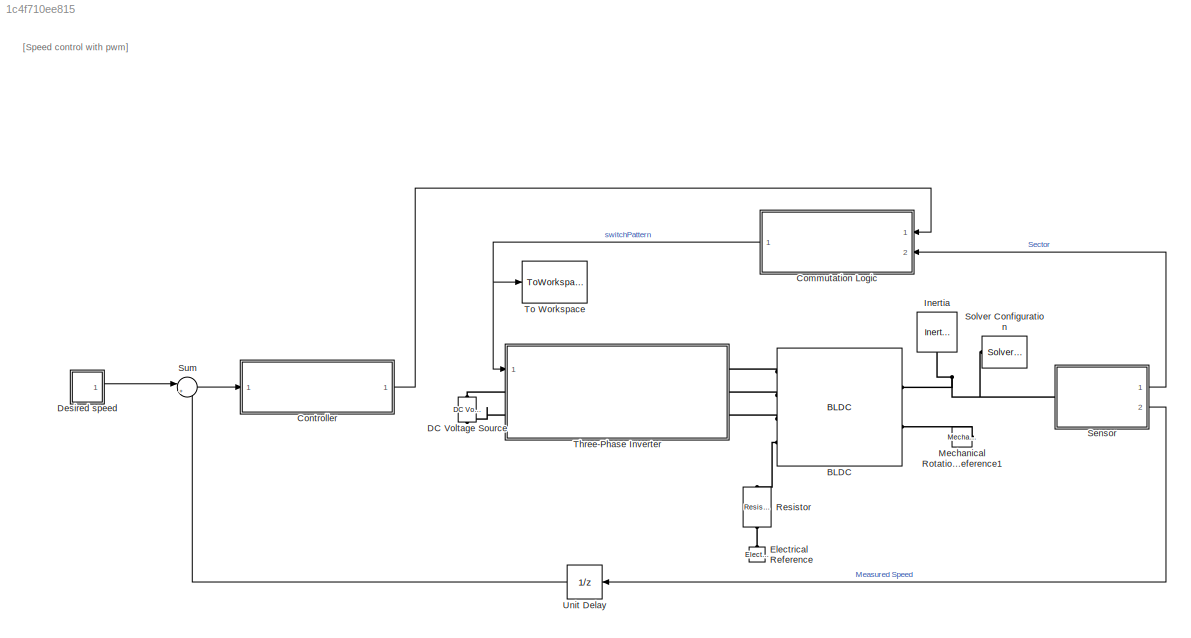
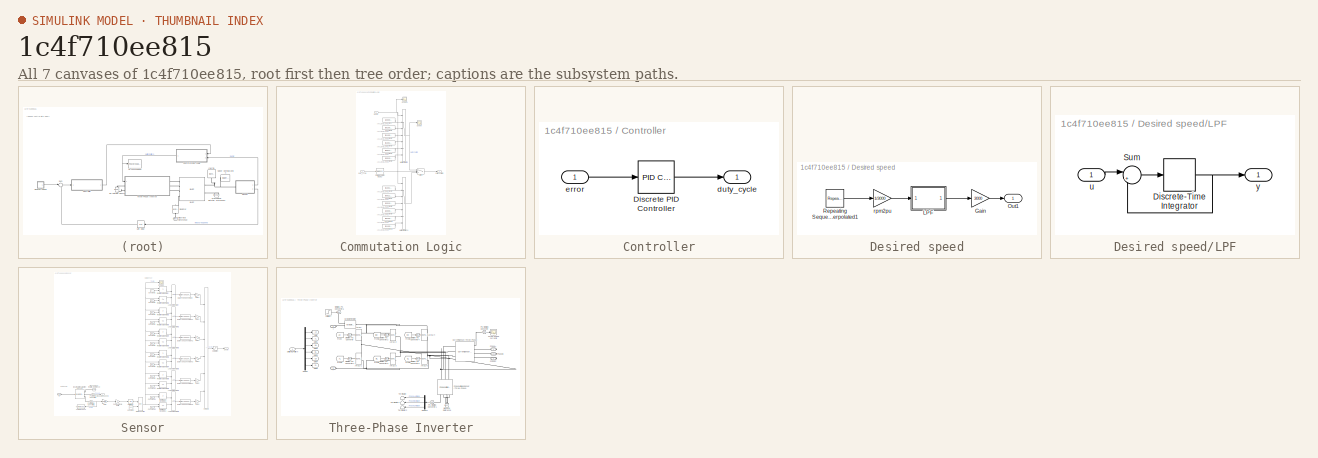
[diagram: thumbnail index - all 7 canvases of the model, root first then tree order]
MODEL slx_1c4f710ee815
KIND model
CONFIG AbsTol = auto
CONFIG EnableMultiTasking = off
CONFIG FixedStep = Ts_motor
CONFIG MaxStep = Ts_motor
CONFIG MinStep = auto
CONFIG RelTol = 1e-3
CONFIG SampleTimeConstraint = Unconstrained
CONFIG SolverName = odeN
CONFIG StartTime = 0.0
CONFIG StopTime = 35
BLOCK [Reference] BLDC  REF=ee_lib/Electromechanical/Permanent Magnet/BLDC
  Ports = [0, 0, 0, 0, 0, 4, 2]
  SourceBlock = ee_lib/Electromechanical/Permanent Magnet/BLDC
  SourceProductBaseCode = PS
  SourceType = BLDC
BLOCK [SubSystem] Commutation Logic
  Ports = [2, 1]
  RequestExecContextInheritance = off
BLOCK [Constant] Commutation Logic/Constant
  Value = [1 0 0 0 0 1]
BLOCK [Constant] Commutation Logic/Constant1
  Value = [0 0 1 0 0 1]
BLOCK [Constant] Commutation Logic/Constant10
  Value = [0 0 1 0 0 1]
BLOCK [Constant] Commutation Logic/Constant11
  Value = [0 1 1 0 0 0]
BLOCK [Constant] Commutation Logic/Constant2
  Value = [0 1 1 0 0 0]
BLOCK [Constant] Commutation Logic/Constant3
  Value = [0 1 0 0 1 0]
BLOCK [Constant] Commutation Logic/Constant4
  Value = [0 0 0 1 1 0]
BLOCK [Constant] Commutation Logic/Constant5
  Value = [1 0 0 1 0 0]
BLOCK [Constant] Commutation Logic/Constant6
  Value = [0 1 0 0 1 0]
BLOCK [Constant] Commutation Logic/Constant7
  Value = [0 0 0 1 1 0]
BLOCK [Constant] Commutation Logic/Constant8
  Value = [1 0 0 1 0 0]
BLOCK [Constant] Commutation Logic/Constant9
  Value = [1 0 0 0 0 1]
BLOCK [MultiPortSwitch] Commutation Logic/Multiport Switch
  InputSameDT = off
  Inputs = 6
  Ports = [7, 1]
  SaturateOnIntegerOverflow = off
BLOCK [MultiPortSwitch] Commutation Logic/Multiport Switch1
  InputSameDT = off
  Inputs = 6
  Ports = [7, 1]
  SaturateOnIntegerOverflow = off
BLOCK [Reference] Commutation Logic/PWM Generator (DC-DC)  REF=spsPWMGeneratorDCDCLib/PWM Generator
(DC-DC)
  Ports = [1, 1]
  SourceBlock = spsPWMGeneratorDCDCLib/PWM Generator\n(DC-DC)
  SourceProductBaseCode = PS
  SourceType = PWM Generator (DC-DC)
BLOCK [Scope] Commutation Logic/Scope
  Floating = off
  NumInputPorts = 1
  Ports = [1]
  ScopeSpecificationString = Simulink.scopes.TimeScopeBlockCfg('CurrentConfiguration', extmgr.ConfigurationSet(extmgr.Configuration('Core','General UI',true),extmgr.Configuration('Core','Source UI',true),extmgr.Configuration('Sources','WiredSimulink',true,'DataLoggingVariableName','ScopeData3'),extmgr.Configuration('Visuals','Time Domain',true,'SerializedDisplays',{struct('MinYLimReal','-0.125','MaxYLimReal','1.125','YLabelRe...<+1452ch>
BLOCK [Scope] Commutation Logic/Scope 1
  Floating = off
  NumInputPorts = 1
  Ports = [1]
  ScopeSpecificationString = Simulink.scopes.TimeScopeBlockCfg('CurrentConfiguration', extmgr.ConfigurationSet(extmgr.Configuration('Core','General UI',true),extmgr.Configuration('Core','Source UI',true),extmgr.Configuration('Sources','WiredSimulink',true,'DataLoggingVariableName','ScopeData2'),extmgr.Configuration('Visuals','Time Domain',true,'SerializedDisplays',{struct('MinYLimReal','0.9','MaxYLimReal','1.1','YLabelReal','...<+1365ch>
BLOCK [Inport] Commutation Logic/Sector
  Port = 2
BLOCK [Switch] Commutation Logic/Switch
  Criteria = u2 > Threshold
  InputSameDT = off
  SaturateOnIntegerOverflow = off
  Threshold = 0.5
BLOCK [Inport] Commutation Logic/duty_cycle
BLOCK [Outport] Commutation Logic/switchPattern
BLOCK [SubSystem] Controller
  Ports = [1, 1]
  RequestExecContextInheritance = off
BLOCK [Reference] Controller/Discrete PID Controller  REF=pid_lib/PID Controller
  Ports = [1, 1]
  SourceBlock = pid_lib/PID Controller
  SourceProductBaseCode = SL
  SourceType = PID 1dof
BLOCK [Outport] Controller/duty_cycle
BLOCK [Inport] Controller/error
BLOCK [Reference] DC Voltage Source  REF=ee_lib/Additional
Components/SPICE Sources/DC Voltage Source
  NameLocation = right
  Ports = [0, 0, 0, 0, 0, 1, 1]
  SourceBlock = ee_lib/Additional\nComponents/SPICE Sources/DC Voltage Source
  SourceProductBaseCode = PS
  SourceType = DC Voltage Source
BLOCK [SubSystem] Desired speed
  Ports = [0, 1]
  RequestExecContextInheritance = off
  ShowPortLabels = none
BLOCK [Gain] Desired speed/Gain
  Gain = 3000
BLOCK [SubSystem] Desired speed/LPF
  Ports = [1, 1]
  RequestExecContextInheritance = off
BLOCK [DiscreteIntegrator] Desired speed/LPF/Discrete-Time Integrator
  ICPrevOutput = DiscIntNeverNeededParam
  ICPrevScaledInput = DiscIntNeverNeededParam
  InitialConditionSetting = Auto
  Ports = [1, 1]
  SampleTime = Ts_motor
  gainval = 20
BLOCK [Sum] Desired speed/LPF/Sum
  Inputs = |+-
  Ports = [2, 1]
BLOCK [Inport] Desired speed/LPF/u
BLOCK [Outport] Desired speed/LPF/y
BLOCK [Outport] Desired speed/Out1
BLOCK [Reference] Desired speed/Repeating Sequence Interpolated1  REF=simulink/Sources/Repeating
Sequence
Interpolated
  Ports = [0, 1]
  SourceBlock = simulink/Sources/Repeating\nSequence\nInterpolated
  SourceProductBaseCode = SL
  SourceType = Repeating Sequence Interpolated
BLOCK [Gain] Desired speed/rpm2pu
  Gain = 1/3000
  OutDataTypeStr = Inherit: Same as input
  RndMeth = Simplest
BLOCK [Reference] Electrical Reference  REF=fl_lib/Electrical/Electrical Elements/Electrical Reference
  NameLocation = right
  Ports = [0, 0, 0, 0, 0, 1]
  SourceBlock = fl_lib/Electrical/Electrical Elements/Electrical Reference
  SourceProductBaseCode = SS
  SourceType = Electrical Reference
BLOCK [Reference] Inertia  REF=fl_lib/Mechanical/Rotational Elements/Inertia
  NameLocation = right
  Ports = [0, 0, 0, 0, 0, 1]
  SourceBlock = fl_lib/Mechanical/Rotational Elements/Inertia
  SourceProductBaseCode = SS
  SourceType = Inertia
BLOCK [Reference] Mechanical Rotational Reference1  REF=fl_lib/Mechanical/Rotational Elements/Mechanical
Rotational Reference
  Ports = [0, 0, 0, 0, 0, 1]
  SourceBlock = fl_lib/Mechanical/Rotational Elements/Mechanical\nRotational Reference
  SourceProductBaseCode = SS
  SourceType = Mechanical\nRotational Reference
BLOCK [Reference] Resistor  REF=fl_lib/Electrical/Electrical Elements/Resistor
  NameLocation = right
  Ports = [0, 0, 0, 0, 0, 1, 1]
  SourceBlock = fl_lib/Electrical/Electrical Elements/Resistor
  SourceProductBaseCode = SS
  SourceType = Resistor
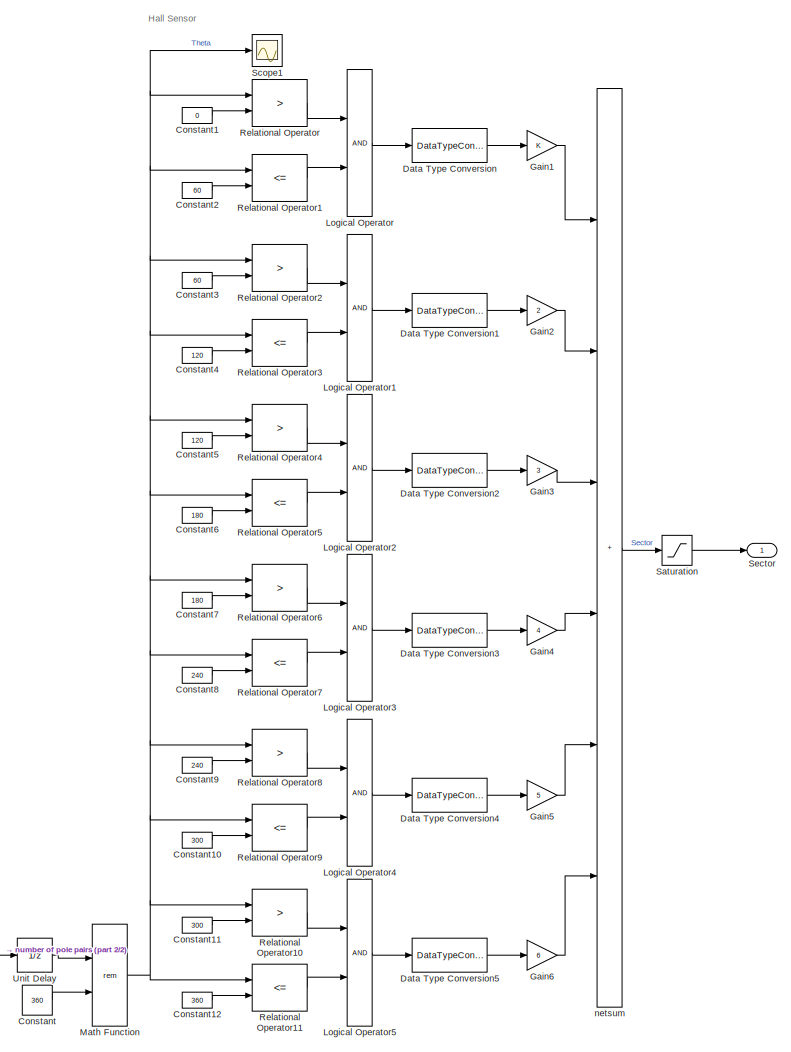
[diagram: Sensor - part 1/2, right side, full height]
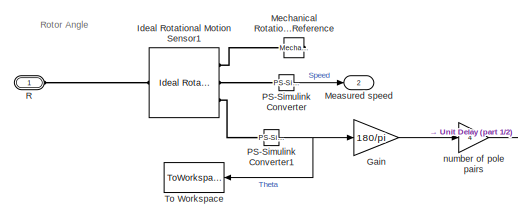
[diagram: Sensor - part 2/2, bottom left region]
BLOCK [SubSystem] Sensor
  Ports = [0, 2, 0, 0, 0, 1]
  RequestExecContextInheritance = off
BLOCK [Constant] Sensor/Constant
  Value = 360
BLOCK [Constant] Sensor/Constant1
  Value = 0
BLOCK [Constant] Sensor/Constant10
  Value = 300
BLOCK [Constant] Sensor/Constant11
  Value = 300
BLOCK [Constant] Sensor/Constant12
  Value = 360
BLOCK [Constant] Sensor/Constant2
  Value = 60
BLOCK [Constant] Sensor/Constant3
  Value = 60
BLOCK [Constant] Sensor/Constant4
  Value = 120
BLOCK [Constant] Sensor/Constant5
  Value = 120
BLOCK [Constant] Sensor/Constant6
  Value = 180
BLOCK [Constant] Sensor/Constant7
  Value = 180
BLOCK [Constant] Sensor/Constant8
  Value = 240
BLOCK [Constant] Sensor/Constant9
  Value = 240
BLOCK [DataTypeConversion] Sensor/Data Type Conversion
  RndMeth = Floor
  SaturateOnIntegerOverflow = off
BLOCK [DataTypeConversion] Sensor/Data Type Conversion1
  RndMeth = Floor
  SaturateOnIntegerOverflow = off
BLOCK [DataTypeConversion] Sensor/Data Type Conversion2
  RndMeth = Floor
  SaturateOnIntegerOverflow = off
BLOCK [DataTypeConversion] Sensor/Data Type Conversion3
  RndMeth = Floor
  SaturateOnIntegerOverflow = off
BLOCK [DataTypeConversion] Sensor/Data Type Conversion4
  RndMeth = Floor
  SaturateOnIntegerOverflow = off
BLOCK [DataTypeConversion] Sensor/Data Type Conversion5
  RndMeth = Floor
  SaturateOnIntegerOverflow = off
BLOCK [Gain] Sensor/Gain
  Gain = 180/pi
BLOCK [Gain] Sensor/Gain1
BLOCK [Gain] Sensor/Gain2
  Gain = 2
BLOCK [Gain] Sensor/Gain3
  Gain = 3
BLOCK [Gain] Sensor/Gain4
  Gain = 4
BLOCK [Gain] Sensor/Gain5
  Gain = 5
BLOCK [Gain] Sensor/Gain6
  Gain = 6
BLOCK [Reference] Sensor/Ideal Rotational Motion Sensor1  REF=fl_lib/Mechanical/Mechanical Sensors/Ideal Rotational
Motion Sensor
  Ports = [0, 0, 0, 0, 0, 1, 3]
  SourceBlock = fl_lib/Mechanical/Mechanical Sensors/Ideal Rotational\nMotion Sensor
  SourceProductBaseCode = SS
  SourceType = Ideal Rotational\nMotion Sensor
BLOCK [Logic] Sensor/Logical Operator
  AllPortsSameDT = off
  OutDataTypeStr = boolean
  Ports = [2, 1]
BLOCK [Logic] Sensor/Logical Operator1
  AllPortsSameDT = off
  OutDataTypeStr = boolean
  Ports = [2, 1]
BLOCK [Logic] Sensor/Logical Operator2
  AllPortsSameDT = off
  OutDataTypeStr = boolean
  Ports = [2, 1]
BLOCK [Logic] Sensor/Logical Operator3
  AllPortsSameDT = off
  OutDataTypeStr = boolean
  Ports = [2, 1]
BLOCK [Logic] Sensor/Logical Operator4
  AllPortsSameDT = off
  OutDataTypeStr = boolean
  Ports = [2, 1]
BLOCK [Logic] Sensor/Logical Operator5
  AllPortsSameDT = off
  OutDataTypeStr = boolean
  Ports = [2, 1]
BLOCK [Math] Sensor/Math Function
  Operator = rem
  Ports = [2, 1]
BLOCK [Outport] Sensor/Measured speed
  Port = 2
BLOCK [Reference] Sensor/Mechanical Rotational Reference  REF=fl_lib/Mechanical/Rotational Elements/Mechanical
Rotational Reference
  NameLocation = top
  Ports = [0, 0, 0, 0, 0, 1]
  SourceBlock = fl_lib/Mechanical/Rotational Elements/Mechanical\nRotational Reference
  SourceProductBaseCode = SS
  SourceType = Mechanical\nRotational Reference
BLOCK [Reference] Sensor/PS-Simulink Converter  REF=nesl_utility/PS-Simulink
Converter
  Ports = [0, 1, 0, 0, 0, 1]
  SourceBlock = nesl_utility/PS-Simulink\nConverter
  SourceProductBaseCode = PW,SS
  SourceType = PS-Simulink\nConverter
BLOCK [Reference] Sensor/PS-Simulink Converter1  REF=nesl_utility/PS-Simulink
Converter
  Ports = [0, 1, 0, 0, 0, 1]
  SourceBlock = nesl_utility/PS-Simulink\nConverter
  SourceProductBaseCode = PW,SS
  SourceType = PS-Simulink\nConverter
BLOCK [PMIOPort] Sensor/R
  Side = Left
BLOCK [RelationalOperator] Sensor/Relational Operator
  InputSameDT = off
  Operator = >
  OutDataTypeStr = boolean
  Ports = [2, 1]
  RndMeth = Simplest
BLOCK [RelationalOperator] Sensor/Relational Operator1
  InputSameDT = off
  Operator = <=
  OutDataTypeStr = boolean
  Ports = [2, 1]
  RndMeth = Simplest
BLOCK [RelationalOperator] Sensor/Relational Operator10
  InputSameDT = off
  Operator = >
  OutDataTypeStr = boolean
  Ports = [2, 1]
  RndMeth = Simplest
BLOCK [RelationalOperator] Sensor/Relational Operator11
  InputSameDT = off
  Operator = <=
  OutDataTypeStr = boolean
  Ports = [2, 1]
  RndMeth = Simplest
BLOCK [RelationalOperator] Sensor/Relational Operator2
  InputSameDT = off
  Operator = >
  OutDataTypeStr = boolean
  Ports = [2, 1]
  RndMeth = Simplest
BLOCK [RelationalOperator] Sensor/Relational Operator3
  InputSameDT = off
  Operator = <=
  OutDataTypeStr = boolean
  Ports = [2, 1]
  RndMeth = Simplest
BLOCK [RelationalOperator] Sensor/Relational Operator4
  InputSameDT = off
  Operator = >
  OutDataTypeStr = boolean
  Ports = [2, 1]
  RndMeth = Simplest
BLOCK [RelationalOperator] Sensor/Relational Operator5
  InputSameDT = off
  Operator = <=
  OutDataTypeStr = boolean
  Ports = [2, 1]
  RndMeth = Simplest
BLOCK [RelationalOperator] Sensor/Relational Operator6
  InputSameDT = off
  Operator = >
  OutDataTypeStr = boolean
  Ports = [2, 1]
  RndMeth = Simplest
BLOCK [RelationalOperator] Sensor/Relational Operator7
  InputSameDT = off
  Operator = <=
  OutDataTypeStr = boolean
  Ports = [2, 1]
  RndMeth = Simplest
BLOCK [RelationalOperator] Sensor/Relational Operator8
  InputSameDT = off
  Operator = >
  OutDataTypeStr = boolean
  Ports = [2, 1]
  RndMeth = Simplest
BLOCK [RelationalOperator] Sensor/Relational Operator9
  InputSameDT = off
  Operator = <=
  OutDataTypeStr = boolean
  Ports = [2, 1]
  RndMeth = Simplest
BLOCK [Saturate] Sensor/Saturation
  LowerLimit = 1
  UpperLimit = 6
BLOCK [Scope] Sensor/Scope1
  Floating = off
  NumInputPorts = 1
  Ports = [1]
  ScopeSpecificationString = Simulink.scopes.TimeScopeBlockCfg('CurrentConfiguration', extmgr.ConfigurationSet(extmgr.Configuration('Core','General UI',true),extmgr.Configuration('Core','Source UI',true),extmgr.Configuration('Sources','WiredSimulink',true,'DataLoggingVariableName','ScopeData1'),extmgr.Configuration('Visuals','Time Domain',true,'SerializedDisplays',{struct('MinYLimReal','-6.87195','MaxYLimReal','61.84755','YLa...<+1402ch>
BLOCK [Outport] Sensor/Sector
BLOCK [ToWorkspace] Sensor/To Workspace
  FixptAsFi = on
  MaxDataPoints = inf
  Ports = [1]
  SampleTime = -1
  Save2DSignal = 2-D array (concatenate along first dimension)
  SaveFormat = Structure
  VariableName = thetaSim
BLOCK [UnitDelay] Sensor/Unit Delay
  HasFrameUpgradeWarning = on
  SampleTime = Ts_motor
BLOCK [Sum] Sensor/netsum
  IconShape = rectangular
  Inputs = ++++++
  OutDataTypeStr = Inherit: Same as first input
  Ports = [6, 1]
BLOCK [Gain] Sensor/number of pole pairs
  Gain = 4
BLOCK [Reference] Solver Configuration  REF=nesl_utility/Solver
Configuration
  Ports = [0, 0, 0, 0, 0, 0, 1]
  SourceBlock = nesl_utility/Solver\nConfiguration
  SourceProductBaseCode = PW,SS
  SourceType = Solver\nConfiguration
BLOCK [Sum] Sum
  Inputs = |+-
  Ports = [2, 1]
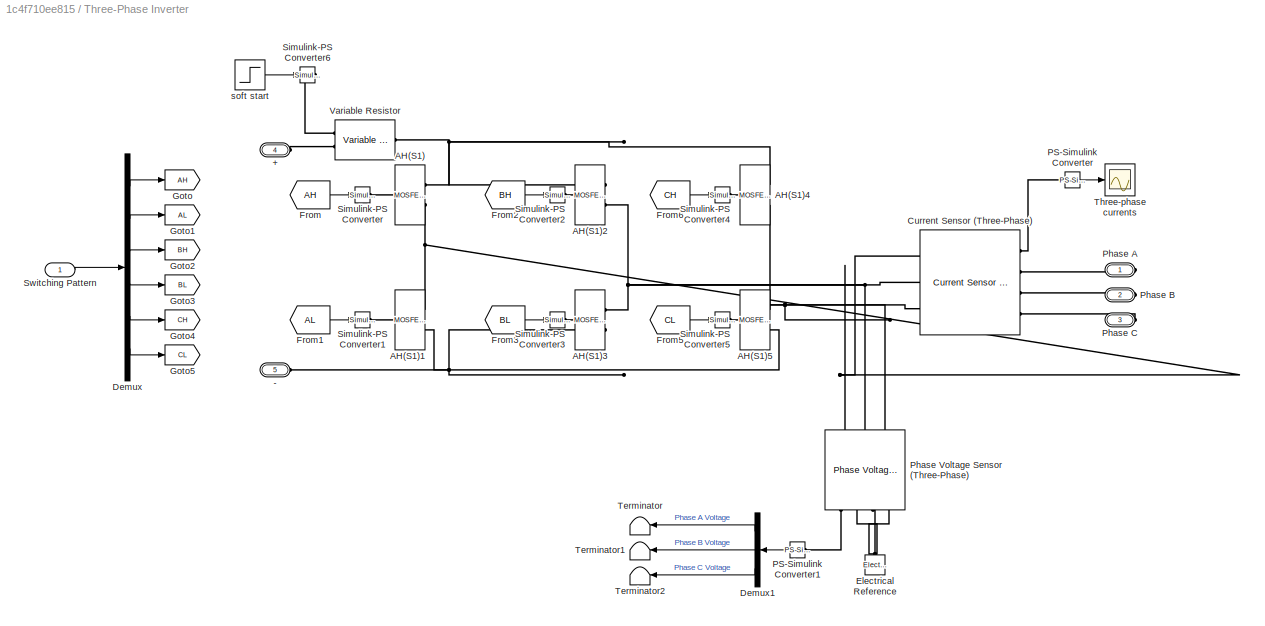
BLOCK [SubSystem] Three-Phase Inverter
  Ports = [1, 0, 0, 0, 0, 2, 3]
  RequestExecContextInheritance = off
BLOCK [PMIOPort] Three-Phase Inverter/+
  Port = 4
  Side = Left
BLOCK [PMIOPort] Three-Phase Inverter/-
  Port = 5
  Side = Left
BLOCK [Reference] Three-Phase Inverter/AH(S1)  REF=ee_lib/Semiconductors &
Converters/MOSFET
(Ideal,
Switching)
  Ports = [0, 0, 0, 0, 0, 1, 2]
  SourceBlock = ee_lib/Semiconductors &\nConverters/MOSFET\n(Ideal,\nSwitching)
  SourceProductBaseCode = PS
  SourceType = MOSFET\n(Ideal,\nSwitching)
BLOCK [Reference] Three-Phase Inverter/AH(S1)1  REF=ee_lib/Semiconductors &
Converters/MOSFET
(Ideal,
Switching)
  Ports = [0, 0, 0, 0, 0, 1, 2]
  SourceBlock = ee_lib/Semiconductors &\nConverters/MOSFET\n(Ideal,\nSwitching)
  SourceProductBaseCode = PS
  SourceType = MOSFET\n(Ideal,\nSwitching)
BLOCK [Reference] Three-Phase Inverter/AH(S1)2  REF=ee_lib/Semiconductors &
Converters/MOSFET
(Ideal,
Switching)
  Ports = [0, 0, 0, 0, 0, 1, 2]
  SourceBlock = ee_lib/Semiconductors &\nConverters/MOSFET\n(Ideal,\nSwitching)
  SourceProductBaseCode = PS
  SourceType = MOSFET\n(Ideal,\nSwitching)
BLOCK [Reference] Three-Phase Inverter/AH(S1)3  REF=ee_lib/Semiconductors &
Converters/MOSFET
(Ideal,
Switching)
  Ports = [0, 0, 0, 0, 0, 1, 2]
  SourceBlock = ee_lib/Semiconductors &\nConverters/MOSFET\n(Ideal,\nSwitching)
  SourceProductBaseCode = PS
  SourceType = MOSFET\n(Ideal,\nSwitching)
BLOCK [Reference] Three-Phase Inverter/AH(S1)4  REF=ee_lib/Semiconductors &
Converters/MOSFET
(Ideal,
Switching)
  Ports = [0, 0, 0, 0, 0, 1, 2]
  SourceBlock = ee_lib/Semiconductors &\nConverters/MOSFET\n(Ideal,\nSwitching)
  SourceProductBaseCode = PS
  SourceType = MOSFET\n(Ideal,\nSwitching)
BLOCK [Reference] Three-Phase Inverter/AH(S1)5  REF=ee_lib/Semiconductors &
Converters/MOSFET
(Ideal,
Switching)
  Ports = [0, 0, 0, 0, 0, 1, 2]
  SourceBlock = ee_lib/Semiconductors &\nConverters/MOSFET\n(Ideal,\nSwitching)
  SourceProductBaseCode = PS
  SourceType = MOSFET\n(Ideal,\nSwitching)
BLOCK [Reference] Three-Phase Inverter/Current Sensor (Three-Phase)  REF=ee_lib/Sensors &
Transducers/Current Sensor
(Three-Phase)
  Ports = [0, 0, 0, 0, 0, 3, 4]
  SourceBlock = ee_lib/Sensors &\nTransducers/Current Sensor\n(Three-Phase)
  SourceProductBaseCode = PS
  SourceType = Current Sensor\n(Three-Phase)
BLOCK [Demux] Three-Phase Inverter/Demux
  Outputs = 6
  Ports = [1, 6]
BLOCK [Demux] Three-Phase Inverter/Demux1
  Outputs = 3
  Ports = [1, 3]
BLOCK [Reference] Three-Phase Inverter/Electrical Reference  REF=fl_lib/Electrical/Electrical Elements/Electrical Reference
  NameLocation = right
  Ports = [0, 0, 0, 0, 0, 1]
  SourceBlock = fl_lib/Electrical/Electrical Elements/Electrical Reference
  SourceProductBaseCode = SS
  SourceType = Electrical Reference
BLOCK [From] Three-Phase Inverter/From
  GotoTag = AH
BLOCK [From] Three-Phase Inverter/From1
  GotoTag = AL
BLOCK [From] Three-Phase Inverter/From2
  GotoTag = BH
BLOCK [From] Three-Phase Inverter/From3
  GotoTag = BL
BLOCK [From] Three-Phase Inverter/From5
  GotoTag = CL
BLOCK [From] Three-Phase Inverter/From6
  GotoTag = CH
BLOCK [Goto] Three-Phase Inverter/Goto
  GotoTag = AH
BLOCK [Goto] Three-Phase Inverter/Goto1
  GotoTag = AL
BLOCK [Goto] Three-Phase Inverter/Goto2
  GotoTag = BH
BLOCK [Goto] Three-Phase Inverter/Goto3
  GotoTag = BL
BLOCK [Goto] Three-Phase Inverter/Goto4
  GotoTag = CH
BLOCK [Goto] Three-Phase Inverter/Goto5
  GotoTag = CL
BLOCK [Reference] Three-Phase Inverter/PS-Simulink Converter  REF=nesl_utility/PS-Simulink
Converter
  Ports = [0, 1, 0, 0, 0, 1]
  SourceBlock = nesl_utility/PS-Simulink\nConverter
  SourceProductBaseCode = PW,SS
  SourceType = PS-Simulink\nConverter
BLOCK [Reference] Three-Phase Inverter/PS-Simulink Converter1  REF=nesl_utility/PS-Simulink
Converter
  Ports = [0, 1, 0, 0, 0, 1]
  SourceBlock = nesl_utility/PS-Simulink\nConverter
  SourceProductBaseCode = PW,SS
  SourceType = PS-Simulink\nConverter
BLOCK [PMIOPort] Three-Phase Inverter/Phase A
  Side = Right
BLOCK [PMIOPort] Three-Phase Inverter/Phase B
  Port = 2
  Side = Right
BLOCK [PMIOPort] Three-Phase Inverter/Phase C
  Port = 3
  Side = Right
BLOCK [Reference] Three-Phase Inverter/Phase Voltage Sensor (Three-Phase)  REF=ee_lib/Sensors &
Transducers/Phase Voltage Sensor
(Three-Phase)
  NameLocation = right
  Ports = [0, 0, 0, 0, 0, 3, 4]
  SourceBlock = ee_lib/Sensors &\nTransducers/Phase Voltage Sensor\n(Three-Phase)
  SourceProductBaseCode = PS
  SourceType = Phase Voltage Sensor\n(Three-Phase)
BLOCK [Reference] Three-Phase Inverter/Simulink-PS Converter  REF=nesl_utility/Simulink-PS
Converter
  Ports = [1, 0, 0, 0, 0, 0, 1]
  SourceBlock = nesl_utility/Simulink-PS\nConverter
  SourceProductBaseCode = PW,SS
  SourceType = Simulink-PS\nConverter
BLOCK [Reference] Three-Phase Inverter/Simulink-PS Converter1  REF=nesl_utility/Simulink-PS
Converter
  Ports = [1, 0, 0, 0, 0, 0, 1]
  SourceBlock = nesl_utility/Simulink-PS\nConverter
  SourceProductBaseCode = PW,SS
  SourceType = Simulink-PS\nConverter
BLOCK [Reference] Three-Phase Inverter/Simulink-PS Converter2  REF=nesl_utility/Simulink-PS
Converter
  Ports = [1, 0, 0, 0, 0, 0, 1]
  SourceBlock = nesl_utility/Simulink-PS\nConverter
  SourceProductBaseCode = PW,SS
  SourceType = Simulink-PS\nConverter
BLOCK [Reference] Three-Phase Inverter/Simulink-PS Converter3  REF=nesl_utility/Simulink-PS
Converter
  Ports = [1, 0, 0, 0, 0, 0, 1]
  SourceBlock = nesl_utility/Simulink-PS\nConverter
  SourceProductBaseCode = PW,SS
  SourceType = Simulink-PS\nConverter
BLOCK [Reference] Three-Phase Inverter/Simulink-PS Converter4  REF=nesl_utility/Simulink-PS
Converter
  Ports = [1, 0, 0, 0, 0, 0, 1]
  SourceBlock = nesl_utility/Simulink-PS\nConverter
  SourceProductBaseCode = PW,SS
  SourceType = Simulink-PS\nConverter
BLOCK [Reference] Three-Phase Inverter/Simulink-PS Converter5  REF=nesl_utility/Simulink-PS
Converter
  Ports = [1, 0, 0, 0, 0, 0, 1]
  SourceBlock = nesl_utility/Simulink-PS\nConverter
  SourceProductBaseCode = PW,SS
  SourceType = Simulink-PS\nConverter
BLOCK [Reference] Three-Phase Inverter/Simulink-PS Converter6  REF=nesl_utility/Simulink-PS
Converter
  Ports = [1, 0, 0, 0, 0, 0, 1]
  SourceBlock = nesl_utility/Simulink-PS\nConverter
  SourceProductBaseCode = PW,SS
  SourceType = Simulink-PS\nConverter
BLOCK [Inport] Three-Phase Inverter/Switching Pattern
BLOCK [Terminator] Three-Phase Inverter/Terminator
BLOCK [Terminator] Three-Phase Inverter/Terminator1
BLOCK [Terminator] Three-Phase Inverter/Terminator2
BLOCK [Scope] Three-Phase Inverter/Three-phase currents
  Floating = off
  NumInputPorts = 1
  Ports = [1]
  ScopeSpecificationString = Simulink.scopes.TimeScopeBlockCfg('CurrentConfiguration', extmgr.ConfigurationSet(extmgr.Configuration('Core','General UI',true),extmgr.Configuration('Core','Source UI',true),extmgr.Configuration('Sources','WiredSimulink',true),extmgr.Configuration('Visuals','Time Domain',true,'SerializedDisplays',{struct('MinYLimReal','-2717.39095','MaxYLimReal','2717.39095','YLabelReal','','MinYLimMag','  0.0000...<+1450ch>
BLOCK [Reference] Three-Phase Inverter/Variable Resistor  REF=fl_lib/Electrical/Electrical Elements/Variable Resistor
  Ports = [0, 0, 0, 0, 0, 2, 1]
  SourceBlock = fl_lib/Electrical/Electrical Elements/Variable Resistor
  SourceProductBaseCode = SS
  SourceType = Variable Resistor
BLOCK [Step] Three-Phase Inverter/soft start
  After = 1e-3
  Before = 0.5
  SampleTime = Ts_motor
  Time = 4
BLOCK [ToWorkspace] To Workspace
  MaxDataPoints = inf
  Ports = [1]
  SampleTime = -1
  Save2DSignal = 2-D array (concatenate along first dimension)
  SaveFormat = Structure
  VariableName = switchPattern
BLOCK [UnitDelay] Unit Delay
  HasFrameUpgradeWarning = on
  SampleTime = -1
ANNOTATION (root): [Speed control with pwm]
ANNOTATION Commutation Logic: AH AL BH BL CH CL
ANNOTATION Sensor: Hall Sensor
ANNOTATION Sensor: Rotor Angle
LINE Commutation Logic/Constant10:1 -> Commutation Logic/Multiport Switch1:6
LINE Commutation Logic/Constant11:1 -> Commutation Logic/Multiport Switch1:7
LINE Commutation Logic/Constant1:1 -> Commutation Logic/Multiport Switch:3
LINE Commutation Logic/Constant2:1 -> Commutation Logic/Multiport Switch:4
LINE Commutation Logic/Constant3:1 -> Commutation Logic/Multiport Switch:5
LINE Commutation Logic/Constant4:1 -> Commutation Logic/Multiport Switch:6
LINE Commutation Logic/Constant5:1 -> Commutation Logic/Multiport Switch:7
LINE Commutation Logic/Constant6:1 -> Commutation Logic/Multiport Switch1:2
LINE Commutation Logic/Constant7:1 -> Commutation Logic/Multiport Switch1:3
LINE Commutation Logic/Constant8:1 -> Commutation Logic/Multiport Switch1:4
LINE Commutation Logic/Constant9:1 -> Commutation Logic/Multiport Switch1:5
LINE Commutation Logic/Constant:1 -> Commutation Logic/Multiport Switch:2
LINE Commutation Logic/Multiport Switch1:1 -> Commutation Logic/Switch:3
NET Commutation Logic/Multiport Switch:1 -> Commutation Logic/Scope:1, Commutation Logic/Switch:1
LINE Commutation Logic/PWM Generator (DC-DC):1 -> Commutation Logic/Switch:2
NET Commutation Logic/Sector:1 -> Commutation Logic/Multiport Switch1:1, Commutation Logic/Multiport Switch:1, Commutation Logic/Scope 1:1
LINE Commutation Logic/Switch:1 -> Commutation Logic/switchPattern:1
LINE Commutation Logic/duty_cycle:1 -> Commutation Logic/PWM Generator (DC-DC):1
NET Commutation Logic:1 -> Three-Phase Inverter:1, To Workspace:1
LINE Controller/Discrete PID Controller:1 -> Controller/duty_cycle:1
LINE Controller/error:1 -> Controller/Discrete PID Controller:1
LINE Controller:1 -> Commutation Logic:1
LINE Desired speed/Gain:1 -> Desired speed/Out1:1
NET Desired speed/LPF/Discrete-Time Integrator:1 -> Desired speed/LPF/Sum:2, Desired speed/LPF/y:1
LINE Desired speed/LPF/Sum:1 -> Desired speed/LPF/Discrete-Time Integrator:1
LINE Desired speed/LPF/u:1 -> Desired speed/LPF/Sum:1
LINE Desired speed/LPF:1 -> Desired speed/Gain:1
LINE Desired speed/Repeating Sequence Interpolated1:1 -> Desired speed/rpm2pu:1
LINE Desired speed/rpm2pu:1 -> Desired speed/LPF:1
LINE Desired speed:1 -> Sum:1
LINE Sensor/Constant10:1 -> Sensor/Relational Operator9:2
LINE Sensor/Constant11:1 -> Sensor/Relational Operator10:2
LINE Sensor/Constant12:1 -> Sensor/Relational Operator11:2
LINE Sensor/Constant1:1 -> Sensor/Relational Operator:2
LINE Sensor/Constant2:1 -> Sensor/Relational Operator1:2
LINE Sensor/Constant3:1 -> Sensor/Relational Operator2:2
LINE Sensor/Constant4:1 -> Sensor/Relational Operator3:2
LINE Sensor/Constant5:1 -> Sensor/Relational Operator4:2
LINE Sensor/Constant6:1 -> Sensor/Relational Operator5:2
LINE Sensor/Constant7:1 -> Sensor/Relational Operator6:2
LINE Sensor/Constant8:1 -> Sensor/Relational Operator7:2
LINE Sensor/Constant9:1 -> Sensor/Relational Operator8:2
LINE Sensor/Constant:1 -> Sensor/Math Function:2
LINE Sensor/Data Type Conversion1:1 -> Sensor/Gain2:1
LINE Sensor/Data Type Conversion2:1 -> Sensor/Gain3:1
LINE Sensor/Data Type Conversion3:1 -> Sensor/Gain4:1
LINE Sensor/Data Type Conversion4:1 -> Sensor/Gain5:1
LINE Sensor/Data Type Conversion5:1 -> Sensor/Gain6:1
LINE Sensor/Data Type Conversion:1 -> Sensor/Gain1:1
LINE Sensor/Gain1:1 -> Sensor/netsum:1
LINE Sensor/Gain2:1 -> Sensor/netsum:2
LINE Sensor/Gain3:1 -> Sensor/netsum:3
LINE Sensor/Gain4:1 -> Sensor/netsum:4
LINE Sensor/Gain5:1 -> Sensor/netsum:5
LINE Sensor/Gain6:1 -> Sensor/netsum:6
LINE Sensor/Gain:1 -> Sensor/number of pole pairs:1
LINE Sensor/Logical Operator1:1 -> Sensor/Data Type Conversion1:1
LINE Sensor/Logical Operator2:1 -> Sensor/Data Type Conversion2:1
LINE Sensor/Logical Operator3:1 -> Sensor/Data Type Conversion3:1
LINE Sensor/Logical Operator4:1 -> Sensor/Data Type Conversion4:1
LINE Sensor/Logical Operator5:1 -> Sensor/Data Type Conversion5:1
LINE Sensor/Logical Operator:1 -> Sensor/Data Type Conversion:1
NET Sensor/Math Function:1 -> Sensor/Relational Operator10:1, Sensor/Relational Operator11:1, Sensor/Relational Operator1:1, Sensor/Relational Operator2:1, Sensor/Relational Operator3:1, Sensor/Relational Operator4:1, Sensor/Relational Operator5:1, Sensor/Relational Operator6:1, Sensor/Relational Operator7:1, Sensor/Relational Operator8:1, Sensor/Relational Operator9:1, Sensor/Relational Operator:1, Sensor/Scope1:1
NET Sensor/PS-Simulink Converter1:1 -> Sensor/Gain:1, Sensor/To Workspace:1
LINE Sensor/PS-Simulink Converter:1 -> Sensor/Measured speed:1
LINE Sensor/Relational Operator10:1 -> Sensor/Logical Operator5:1
LINE Sensor/Relational Operator11:1 -> Sensor/Logical Operator5:2
LINE Sensor/Relational Operator1:1 -> Sensor/Logical Operator:2
LINE Sensor/Relational Operator2:1 -> Sensor/Logical Operator1:1
LINE Sensor/Relational Operator3:1 -> Sensor/Logical Operator1:2
LINE Sensor/Relational Operator4:1 -> Sensor/Logical Operator2:1
LINE Sensor/Relational Operator5:1 -> Sensor/Logical Operator2:2
LINE Sensor/Relational Operator6:1 -> Sensor/Logical Operator3:1
LINE Sensor/Relational Operator7:1 -> Sensor/Logical Operator3:2
LINE Sensor/Relational Operator8:1 -> Sensor/Logical Operator4:1
LINE Sensor/Relational Operator9:1 -> Sensor/Logical Operator4:2
LINE Sensor/Relational Operator:1 -> Sensor/Logical Operator:1
LINE Sensor/Saturation:1 -> Sensor/Sector:1
LINE Sensor/Unit Delay:1 -> Sensor/Math Function:1
LINE Sensor/netsum:1 -> Sensor/Saturation:1
LINE Sensor/number of pole pairs:1 -> Sensor/Unit Delay:1
LINE Sensor:1 -> Commutation Logic:2
LINE Sensor:2 -> Unit Delay:1
LINE Sum:1 -> Controller:1
LINE Three-Phase Inverter/Demux1:1 -> Three-Phase Inverter/Terminator:1
LINE Three-Phase Inverter/Demux1:2 -> Three-Phase Inverter/Terminator1:1
LINE Three-Phase Inverter/Demux1:3 -> Three-Phase Inverter/Terminator2:1
LINE Three-Phase Inverter/Demux:1 -> Three-Phase Inverter/Goto:1
LINE Three-Phase Inverter/Demux:2 -> Three-Phase Inverter/Goto1:1
LINE Three-Phase Inverter/Demux:3 -> Three-Phase Inverter/Goto2:1
LINE Three-Phase Inverter/Demux:4 -> Three-Phase Inverter/Goto3:1
LINE Three-Phase Inverter/Demux:5 -> Three-Phase Inverter/Goto4:1
LINE Three-Phase Inverter/Demux:6 -> Three-Phase Inverter/Goto5:1
LINE Three-Phase Inverter/From1:1 -> Three-Phase Inverter/Simulink-PS Converter1:1
LINE Three-Phase Inverter/From2:1 -> Three-Phase Inverter/Simulink-PS Converter2:1
LINE Three-Phase Inverter/From3:1 -> Three-Phase Inverter/Simulink-PS Converter3:1
LINE Three-Phase Inverter/From5:1 -> Three-Phase Inverter/Simulink-PS Converter5:1
LINE Three-Phase Inverter/From6:1 -> Three-Phase Inverter/Simulink-PS Converter4:1
LINE Three-Phase Inverter/From:1 -> Three-Phase Inverter/Simulink-PS Converter:1
LINE Three-Phase Inverter/PS-Simulink Converter1:1 -> Three-Phase Inverter/Demux1:1
LINE Three-Phase Inverter/PS-Simulink Converter:1 -> Three-Phase Inverter/Three-phase currents:1
LINE Three-Phase Inverter/Switching Pattern:1 -> Three-Phase Inverter/Demux:1
LINE Three-Phase Inverter/soft start:1 -> Three-Phase Inverter/Simulink-PS Converter6:1
LINE Unit Delay:1 -> Sum:2
PLINE BLDC:LConn1 -- Three-Phase Inverter:RConn1
PLINE BLDC:LConn2 -- Three-Phase Inverter:RConn2
PLINE BLDC:LConn3 -- Three-Phase Inverter:RConn3
PLINE BLDC:LConn4 -- Resistor:LConn1
PNET net1: BLDC:RConn1 -- Inertia:LConn1 -- Sensor:LConn1 -- Solver Configuration:RConn1
PLINE BLDC:RConn2 -- Mechanical Rotational Reference1:LConn1
PLINE DC Voltage Source:LConn1 -- Three-Phase Inverter:LConn1
PLINE DC Voltage Source:RConn1 -- Three-Phase Inverter:LConn2
PLINE Electrical Reference:LConn1 -- Resistor:RConn1
PLINE Sensor/Ideal Rotational Motion Sensor1:LConn1 -- Sensor/R:RConn1
PLINE Sensor/Ideal Rotational Motion Sensor1:RConn1 -- Sensor/Mechanical Rotational Reference:LConn1
PLINE Sensor/Ideal Rotational Motion Sensor1:RConn2 -- Sensor/PS-Simulink Converter:LConn1
PLINE Sensor/Ideal Rotational Motion Sensor1:RConn3 -- Sensor/PS-Simulink Converter1:LConn1
PLINE Three-Phase Inverter/+:RConn1 -- Three-Phase Inverter/Variable Resistor:LConn2
PNET net2: Three-Phase Inverter/-:RConn1 -- Three-Phase Inverter/AH(S1)1:RConn2 -- Three-Phase Inverter/AH(S1)3:RConn2 -- Three-Phase Inverter/AH(S1)5:RConn2
PLINE Three-Phase Inverter/AH(S1)1:LConn1 -- Three-Phase Inverter/Simulink-PS Converter1:RConn1
PNET net3: Three-Phase Inverter/AH(S1)1:RConn1 -- Three-Phase Inverter/AH(S1):RConn2 -- Three-Phase Inverter/Current Sensor (Three-Phase):LConn1 -- Three-Phase Inverter/Phase Voltage Sensor (Three-Phase):LConn1
PLINE Three-Phase Inverter/AH(S1)2:LConn1 -- Three-Phase Inverter/Simulink-PS Converter2:RConn1
PNET net4: Three-Phase Inverter/AH(S1)2:RConn1 -- Three-Phase Inverter/AH(S1)4:RConn1 -- Three-Phase Inverter/AH(S1):RConn1 -- Three-Phase Inverter/Variable Resistor:RConn1
PNET net5: Three-Phase Inverter/AH(S1)2:RConn2 -- Three-Phase Inverter/AH(S1)3:RConn1 -- Three-Phase Inverter/Current Sensor (Three-Phase):LConn2 -- Three-Phase Inverter/Phase Voltage Sensor (Three-Phase):LConn2
PLINE Three-Phase Inverter/AH(S1)3:LConn1 -- Three-Phase Inverter/Simulink-PS Converter3:RConn1
PLINE Three-Phase Inverter/AH(S1)4:LConn1 -- Three-Phase Inverter/Simulink-PS Converter4:RConn1
PNET net6: Three-Phase Inverter/AH(S1)4:RConn2 -- Three-Phase Inverter/AH(S1)5:RConn1 -- Three-Phase Inverter/Current Sensor (Three-Phase):LConn3 -- Three-Phase Inverter/Phase Voltage Sensor (Three-Phase):LConn3
PLINE Three-Phase Inverter/AH(S1)5:LConn1 -- Three-Phase Inverter/Simulink-PS Converter5:RConn1
PLINE Three-Phase Inverter/AH(S1):LConn1 -- Three-Phase Inverter/Simulink-PS Converter:RConn1
PLINE Three-Phase Inverter/Current Sensor (Three-Phase):RConn1 -- Three-Phase Inverter/PS-Simulink Converter:LConn1
PLINE Three-Phase Inverter/Current Sensor (Three-Phase):RConn2 -- Three-Phase Inverter/Phase A:RConn1
PLINE Three-Phase Inverter/Current Sensor (Three-Phase):RConn3 -- Three-Phase Inverter/Phase B:RConn1
PLINE Three-Phase Inverter/Current Sensor (Three-Phase):RConn4 -- Three-Phase Inverter/Phase C:RConn1
PNET net7: Three-Phase Inverter/Electrical Reference:LConn1 -- Three-Phase Inverter/Phase Voltage Sensor (Three-Phase):RConn2 -- Three-Phase Inverter/Phase Voltage Sensor (Three-Phase):RConn3 -- Three-Phase Inverter/Phase Voltage Sensor (Three-Phase):RConn4
PLINE Three-Phase Inverter/PS-Simulink Converter1:LConn1 -- Three-Phase Inverter/Phase Voltage Sensor (Three-Phase):RConn1
PLINE Three-Phase Inverter/Simulink-PS Converter6:RConn1 -- Three-Phase Inverter/Variable Resistor:LConn1
note: NET lines group one-source signal fan-out (src -> all destinations, sorted); 1:1 wires keep LINE; PNET lines group multi-terminal physical nets as a canonical sorted terminal list (undirected conserving connections); 2-terminal nets keep the pairwise PLINE form
